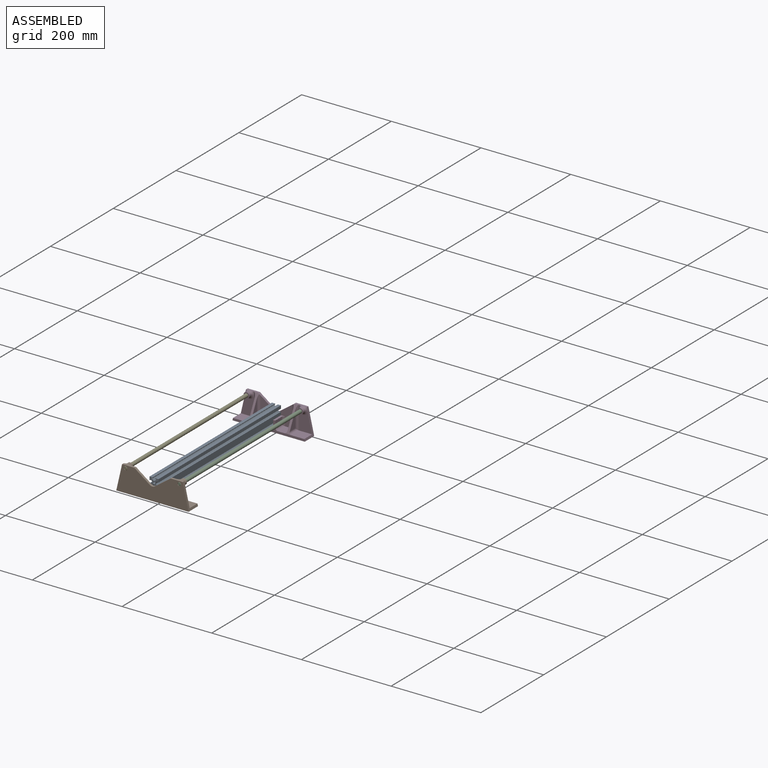
[diagram: assembled view]
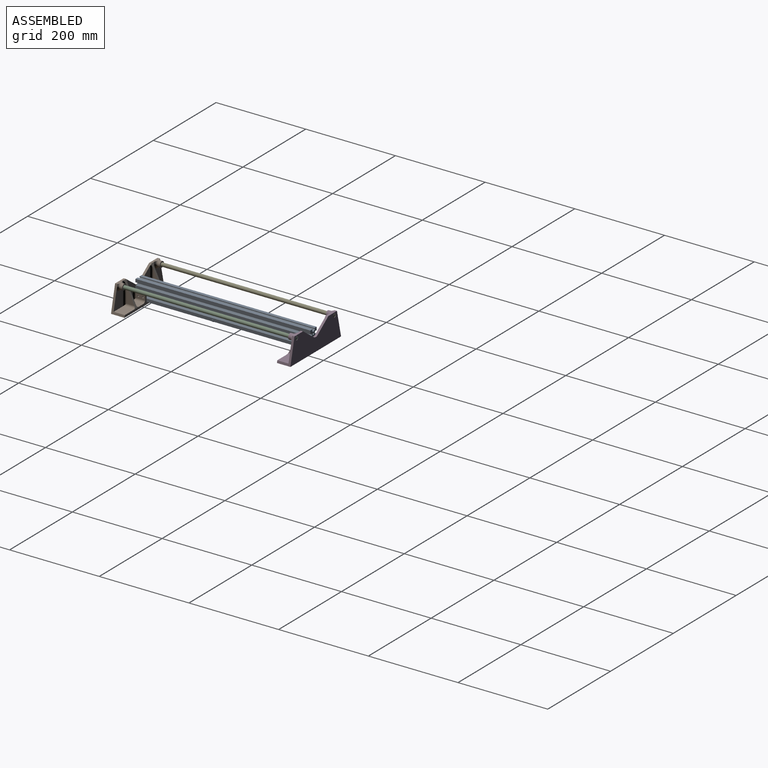
[diagram: assembled view, second angle]
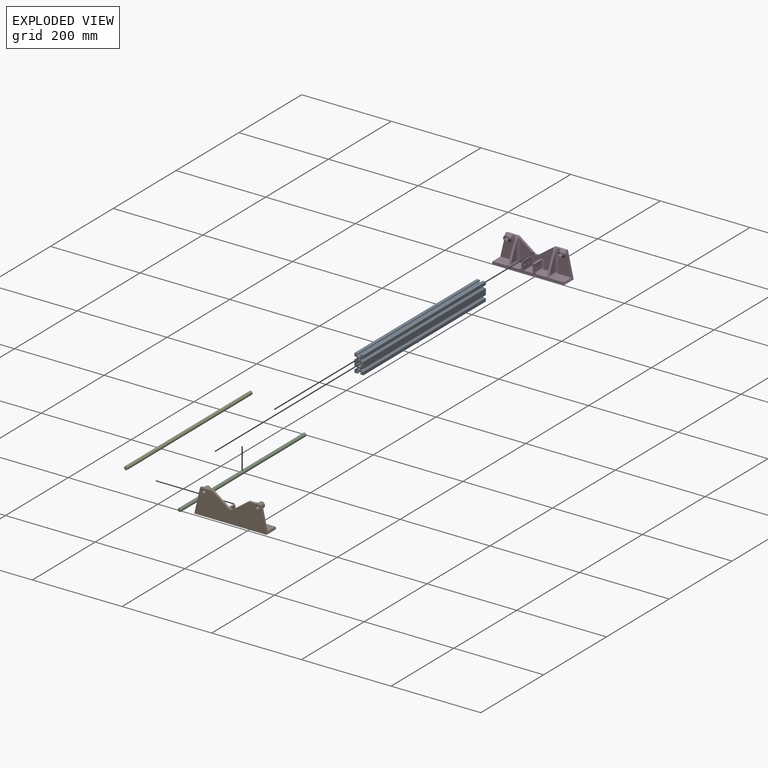
[diagram: exploded view]
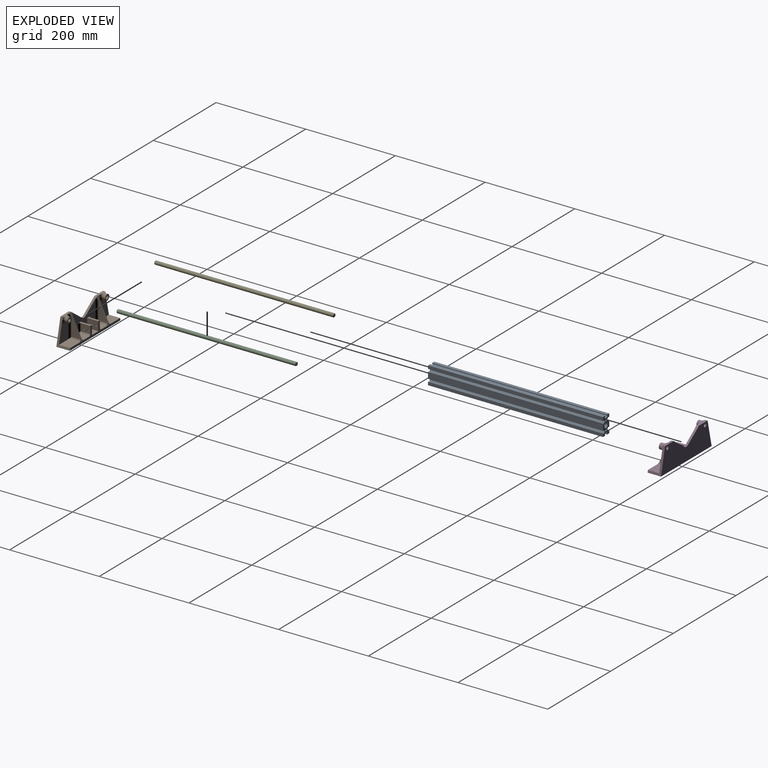
[diagram: exploded view, second angle]
ASSEMBLY  parts=5 mates=10
PART A: 68 faces, bbox 21x390x40 mm
  f0: plane 390x1.8mm, normal (1,0,0), area 702mm2, adj f1,f61,f62,f63
  f1: plane 390x6.9mm, normal (0,0,1), area 2691mm2, adj f0,f2,f62,f63
  f2: plane 390x6.9mm, normal (-1,0,0), area 2691mm2, adj f1,f3,f62,f63
  f3: plane 390x1.8mm, normal (0,0,-1), area 702mm2, adj f2,f4,f62,f63
  f4: plane 390x2.4mm, normal (1,0,0), area 936mm2, adj f3,f5,f62,f63
  f5: plane 390x4.3mm, normal (-0.71,0,-0.71), area 2371.6mm2, adj f4,f6,f62,f63
  f6: plane 390x2.4mm, normal (-1,0,0), area 936mm2, adj f5,f7,f62,f63
  f7: plane 390x4.3mm, normal (-0.71,0,0.71), area 2371.6mm2, adj f6,f8,f62,f63
  f8: plane 390x2.4mm, normal (1,0,0), area 936mm2, adj f7,f9,f62,f63
  f9: plane 390x1.8mm, normal (0,0,1), area 702mm2, adj f8,f10,f62,f63
  f10: plane 390x13.8mm, normal (-1,0,0), area 5382mm2, adj f9,f11,f62,f63
  f11: plane 390x1.8mm, normal (0,0,-1), area 702mm2, adj f10,f12,f62,f63
  f12: plane 390x2.4mm, normal (1,0,0), area 936mm2, adj f11,f13,f62,f63
  f13: plane 390x4.3mm, normal (-0.71,0,-0.71), area 2371.6mm2, adj f12,f14,f62,f63
  f14: plane 390x2.4mm, normal (-1,0,0), area 936mm2, adj f13,f15,f62,f63
  f15: plane 390x4.3mm, normal (-0.71,0,0.71), area 2371.6mm2, adj f14,f16,f62,f63
  f16: plane 390x2.4mm, normal (1,0,0), area 936mm2, adj f15,f17,f62,f63
  f17: plane 390x1.8mm, normal (0,0,1), area 702mm2, adj f16,f18,f62,f63
  f18: plane 390x6.9mm, normal (-1,0,0), area 2691mm2, adj f17,f19,f62,f63
  f19: plane 390x6.9mm, normal (0,0,-1), area 2691mm2, adj f18,f20,f62,f63
  f20: plane 390x1.8mm, normal (1,0,0), area 702mm2, adj f19,f21,f62,f63
  f21: plane 390x2.4mm, normal (0,0,1), area 936mm2, adj f20,f22,f62,f63
  f22: plane 390x4.3mm, normal (0.71,0,-0.71), area 2371.6mm2, adj f21,f23,f62,f63
  f23: plane 390x2.4mm, normal (0,0,-1), area 936mm2, adj f22,f24,f62,f63
  f24: plane 390x4.3mm, normal (-0.71,0,-0.71), area 2371.6mm2, adj f23,f25,f62,f63
  f25: plane 390x2.4mm, normal (0,0,1), area 936mm2, adj f24,f26,f62,f63
  f26: plane 390x1.8mm, normal (-1,0,0), area 702mm2, adj f25,f27,f62,f63
  f27: plane 390x7.9mm, normal (0,0,-1), area 2694.9mm2, adj f26,f28,f62,f63,f64,f66,f67
  f28: plane 390x6.9mm, normal (1,0,0), area 2676.1mm2, adj f27,f29,f62,f63,f64,f65,f66
  f29: plane 390x1.8mm, normal (0,0,1), area 702mm2, adj f28,f30,f62,f63
  f30: plane 390x2.4mm, normal (-1,0,0), area 936mm2, adj f29,f31,f62,f63
  f31: plane 390x4.3mm, normal (0.71,0,0.71), area 2371.6mm2, adj f30,f32,f62,f63
  f32: plane 390x2.4mm, normal (1,0,0), area 936mm2, adj f31,f33,f62,f63
  f33: plane 390x4.3mm, normal (0.71,0,-0.71), area 2371.6mm2, adj f32,f34,f62,f63
  f34: plane 390x2.4mm, normal (-1,0,0), area 936mm2, adj f33,f35,f62,f63
  f35: plane 390x1.8mm, normal (0,0,-1), area 702mm2, adj f34,f36,f62,f63
  f36: plane 390x13.8mm, normal (1,0,0), area 5382mm2, adj f35,f37,f62,f63
  f37: plane 390x1.8mm, normal (0,0,1), area 702mm2, adj f36,f38,f62,f63
  f38: plane 390x2.4mm, normal (-1,0,0), area 936mm2, adj f37,f39,f62,f63
  f39: plane 390x4.3mm, normal (0.71,0,0.71), area 2371.6mm2, adj f38,f40,f62,f63
  f40: plane 390x2.4mm, normal (1,0,0), area 936mm2, adj f39,f41,f62,f63
  f41: plane 390x4.3mm, normal (0.71,0,-0.71), area 2371.6mm2, adj f40,f42,f62,f63
  f42: plane 390x2.4mm, normal (-1,0,0), area 936mm2, adj f41,f43,f62,f63
  f43: plane 390x1.8mm, normal (0,0,-1), area 702mm2, adj f42,f44,f62,f63
  f44: plane 390x6.9mm, normal (1,0,0), area 2691mm2, adj f43,f45,f62,f63
  f45: plane 390x6.9mm, normal (0,0,1), area 2691mm2, adj f44,f46,f62,f63
  f46: plane 390x1.8mm, normal (-1,0,0), area 702mm2, adj f45,f47,f62,f63
  f47: plane 390x2.4mm, normal (0,0,-1), area 936mm2, adj f46,f48,f62,f63
  f48: plane 390x4.3mm, normal (-0.71,0,0.71), area 2371.6mm2, adj f47,f49,f62,f63
  f49: plane 390x2.4mm, normal (0,0,1), area 936mm2, adj f48,f50,f62,f63
  f50: plane 390x4.3mm, normal (0.71,0,0.71), area 2371.6mm2, adj f49,f61,f62,f63
  f51: plane 390x3.6mm, normal (1,0,0), area 1404mm2, adj f52,f58,f62,f63
  f52: plane 390x4.3mm, normal (0.71,0,-0.71), area 2371.6mm2, adj f51,f53,f62,f63
  f53: plane 390x2.4mm, normal (0,0,-1), area 936mm2, adj f52,f54,f62,f63
  f54: plane 390x4.3mm, normal (-0.71,0,-0.71), area 2371.6mm2, adj f53,f55,f62,f63
  f55: plane 390x3.6mm, normal (-1,0,0), area 1404mm2, adj f54,f56,f62,f63
  f56: plane 390x4.3mm, normal (-0.71,0,0.71), area 2371.6mm2, adj f55,f57,f62,f63
  f57: plane 390x2.4mm, normal (0,0,1), area 936mm2, adj f56,f58,f62,f63
  f58: plane 390x4.3mm, normal (0.71,0,0.71), area 2371.6mm2, adj f51,f57,f62,f63
  f59: cylinder r=2.5mm len=390mm, axis (0,1,0), area 6126.1mm2, adj f62,f63
  f60: cylinder r=2.5mm len=390mm, axis (0,1,0), area 6126.1mm2, adj f62,f63
  f61: plane 390x2.4mm, normal (0,0,-1), area 936mm2, adj f0,f50,f62,f63
  f62: plane 40x20mm, normal (0,-1,0), area 423.7mm2, adj f0,f1,f2,f3,f4,f5,f6,f7
  f63: plane 40x20mm, normal (0,1,0), area 423.7mm2, adj f0,f1,f2,f3,f4,f5,f6,f7
  f64: plane 3.8x1mm, normal (0,1,0), area 3.8mm2, adj f27,f28,f65,f67
  f65: plane 3.92x1mm, normal (0,0,1), area 3.9mm2, adj f28,f64,f66,f67
  f66: plane 3.8x1mm, normal (0,-1,0), area 3.8mm2, adj f27,f28,f65,f67
  f67: plane 3.92x3.8mm, normal (1,0,0), area 14.9mm2, adj f27,f64,f65,f66
PART B: 56 faces, bbox 162.5x31.2x67.4 mm
  f0: plane 0.26x0.17mm, normal (0,1,0), area 0mm2, adj f4,f22,f23
  f1: plane 25x20mm, normal (0,0,1), area 500mm2, adj f10,f12,f16,f41
  f2: plane 40.08x29.11mm, normal (0,1,0), area 886.8mm2, adj f5,f11,f22,f23
  f3: plane 25x15.39mm, normal (0,0,1), area 384.8mm2, adj f10,f12,f25,f27
  f4: plane 27.29x9.8mm, normal (0,0,1), area 169.6mm2, adj f0,f5,f8,f9,f13,f23
  f5: plane 56.4x30mm, normal (-0.97,0,0.22), area 422.2mm2, adj f2,f4,f6,f9,f11,f12,f23
  f6: plane 161.3x30mm, normal (0,0,-1), area 4838.9mm2, adj f5,f9,f12,f34
  f7: cylinder r=4mm len=15mm, axis (0,1,0), area 377mm2, adj f9,f20
  f8: plane 34.6x25.19mm, normal (0.59,0,0.81), area 215.4mm2, adj f4,f9,f10,f13,f26,f55
  f9: plane 161.3x56.4mm, normal (0,-1,0), area 7088.4mm2, adj f4,f5,f6,f7,f8,f33,f34,f35
  f10: plane 70.78x47.76mm, normal (0,1,0), area 2079.5mm2, adj f1,f3,f8,f16,f18,f24,f26,f32
  f11: plane 29.11x25mm, normal (0,0,1), area 727.7mm2, adj f2,f5,f12,f21
  f12: plane 161.3x25mm, normal (0,1,0), area 1011.5mm2, adj f1,f3,f5,f6,f11,f13,f16,f17
  f13: plane 52.62x26.21mm, normal (0,0.9,0.44), area 318.5mm2, adj f4,f8,f12,f14,f15,f21,f22,f26
  f14: plane 36.12x17.57mm, normal (-1,0,0), area 317.3mm2, adj f13,f21,f22
  f15: plane 36.12x17.57mm, normal (1,0,0), area 317.3mm2, adj f13,f26,f27
  f16: plane 25x20mm, normal (1,0,0), area 480.8mm2, adj f1,f10,f12,f18,f28,f29
  f17: plane 20x15mm, normal (-1,0,0), area 280.8mm2, adj f12,f18,f24,f25,f28,f29
  f18: plane 25x10mm, normal (0,0,1), area 130.4mm2, adj f10,f12,f16,f17,f24
  f19: cylinder r=6.4mm len=12.8mm, axis (0,-1,0), area 201.1mm2, adj f20,f23
  f20: plane 12.8x12.8mm, normal (0,1,0), area 78.5mm2, adj f7,f19
  f21: cylinder r=5mm len=25mm, axis (0,-1,0), area 167.2mm2, adj f11,f13,f14,f22
  f22: cylinder r=5mm len=51.4mm, axis (0,0,-1), area 352.7mm2, adj f0,f2,f13,f14,f21,f23
  f23: torus R=11.4mm, axis (0,-1,0), area 295.5mm2, adj f0,f2,f4,f5,f19,f22
  f24: cylinder r=5mm len=20mm, axis (0,0,-1), area 137.4mm2, adj f10,f17,f18,f25
  f25: cylinder r=5mm len=25mm, axis (0,1,0), area 176.7mm2, adj f3,f12,f17,f24
  f26: cylinder r=5mm len=49.74mm, axis (0,0,1), area 346.8mm2, adj f8,f10,f13,f15,f27
  f27: cylinder r=5mm len=25mm, axis (0,1,0), area 167.2mm2, adj f3,f13,f15,f26
  f28: cylinder r=1.75mm len=5mm, axis (1,0,0), area 55mm2, adj f16,f17
  f29: cylinder r=1.75mm len=5mm, axis (1,0,0), area 55mm2, adj f16,f17
  f30: plane 0.26x0.17mm, normal (0,1,0), area 0mm2, adj f33,f47,f48
  f31: plane 40.08x29.11mm, normal (0,1,0), area 886.8mm2, adj f34,f37,f47,f48
  f32: plane 25x15.39mm, normal (0,0,1), area 384.8mm2, adj f10,f12,f50,f52
  f33: plane 27.29x9.8mm, normal (0,0,1), area 169.6mm2, adj f9,f30,f34,f36,f38,f48
  f34: plane 56.4x30mm, normal (0.97,0,0.22), area 422.2mm2, adj f6,f9,f12,f31,f33,f37,f48
  f35: cylinder r=4mm len=15mm, axis (0,1,0), area 377mm2, adj f9,f45
  f36: plane 34.6x25.19mm, normal (-0.59,0,0.81), area 215.4mm2, adj f9,f10,f33,f38,f51,f55
  f37: plane 29.11x25mm, normal (0,0,1), area 727.7mm2, adj f12,f31,f34,f46
  f38: plane 52.62x26.21mm, normal (0,0.9,0.44), area 318.5mm2, adj f12,f33,f36,f39,f40,f46,f47,f51
  f39: plane 36.12x17.57mm, normal (1,0,0), area 317.3mm2, adj f38,f46,f47
  f40: plane 36.12x17.57mm, normal (-1,0,0), area 317.3mm2, adj f38,f51,f52
  f41: plane 25x20mm, normal (-1,0,0), area 480.8mm2, adj f1,f10,f12,f43,f53,f54
  f42: plane 20x15mm, normal (1,0,0), area 280.8mm2, adj f12,f43,f49,f50,f53,f54
  f43: plane 25x10mm, normal (0,0,1), area 130.4mm2, adj f10,f12,f41,f42,f49
  f44: cylinder r=6.4mm len=12.8mm, axis (0,-1,0), area 201.1mm2, adj f45,f48
  f45: plane 12.8x12.8mm, normal (0,1,0), area 78.5mm2, adj f35,f44
  f46: cylinder r=5mm len=25mm, axis (0,-1,0), area 167.2mm2, adj f37,f38,f39,f47
  f47: cylinder r=5mm len=51.4mm, axis (0,0,-1), area 352.7mm2, adj f30,f31,f38,f39,f46,f48
  f48: torus R=11.4mm, axis (0,-1,0), area 295mm2, adj f30,f31,f33,f34,f44,f47
  f49: cylinder r=5mm len=20mm, axis (0,0,-1), area 137.4mm2, adj f10,f42,f43,f50
  f50: cylinder r=5mm len=25mm, axis (0,1,0), area 176.7mm2, adj f12,f32,f42,f49
  f51: cylinder r=5mm len=49.74mm, axis (0,0,1), area 346.8mm2, adj f10,f36,f38,f40,f52
  f52: cylinder r=5mm len=25mm, axis (0,1,0), area 167.2mm2, adj f32,f38,f40,f51
  f53: cylinder r=1.75mm len=5mm, axis (-1,0,0), area 55mm2, adj f41,f42
  f54: cylinder r=1.75mm len=5mm, axis (-1,0,0), area 55mm2, adj f41,f42
  f55: cylinder r=10mm len=11.77mm, axis (0,-1,0), area 62.9mm2, adj f8,f9,f10,f36
PART C: 5 faces, bbox 8x400x8 mm
  f0: cylinder r=4mm len=398mm, axis (0,1,0), area 10002.8mm2, adj f3,f4
  f1: plane 6x6mm, normal (0,-1,0), area 28.3mm2, adj f4
  f2: plane 6x6mm, normal (0,1,0), area 28.3mm2, adj f3
  f3: cone r=4mm half-angle=45deg, axis (0,-1,0), area 31.1mm2, adj f0,f2
  f4: cone r=3mm half-angle=45deg, axis (0,1,0), area 31.1mm2, adj f0,f1
PART D: same geometry as B
PART E: same geometry as C
PLACE A t=(0,182.5,20)mm
PLACE B t=(0,-12.5,-5)mm
PLACE C t=(60,182.5,45)mm
PLACE D rot(axis=(0,0,1),180deg) t=(0,377.5,-5)mm
PLACE E t=(-60,182.5,45)mm
MATE cylindrical D.f7 <-> C.f0  axis (0,1,0) through (60,382.5,45)mm
MATE planar D.f9 <-> C.f0  axis (0,1,0) through (0,382.5,18.84)mm
MATE planar A.f62 <-> B.f10  axis (0,-1,0) through (3.35,-12.5,23.95)mm
MATE cylindrical C.f0 <-> B.f35  axis (0,1,0) through (60,182.5,45)mm
MATE cylindrical D.f35 <-> E.f0  axis (0,1,0) through (-60,382.5,45)mm
MATE planar E.f0 <-> B.f9  axis (0,-1,0) through (-60,-17.5,45)mm
MATE planar C.f0 <-> B.f9  axis (0,-1,0) through (60,-17.5,45)mm
MATE cylindrical E.f0 <-> B.f7  axis (0,1,0) through (-60,182.5,45)mm
MATE planar A.f27 <-> B.f32  axis (0,0,-1) through (6.56,182.47,0)mm
MATE planar A.f18 <-> B.f16  axis (-1,0,0) through (-10,182.5,3.45)mm
